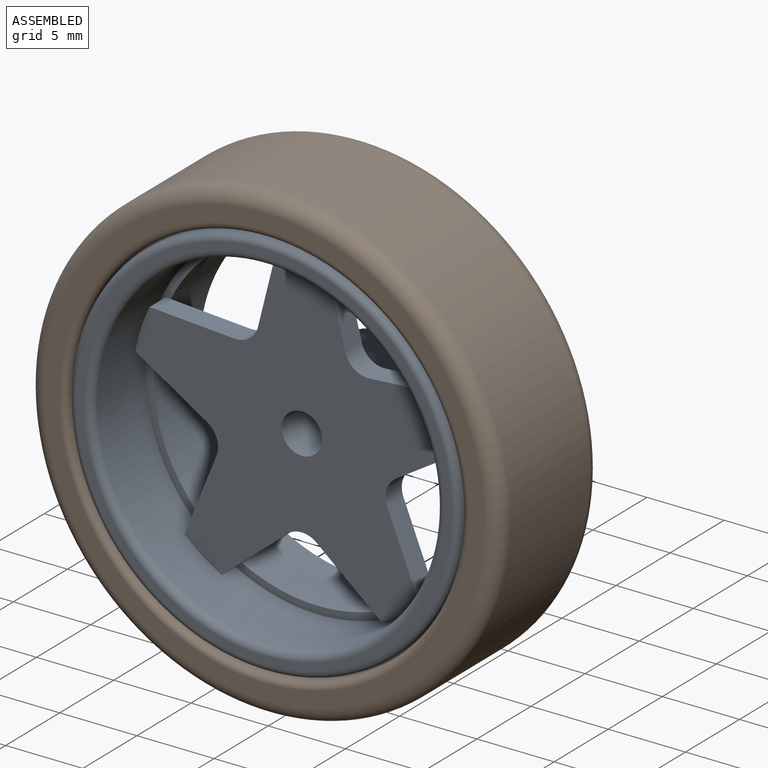
[diagram: assembled view]
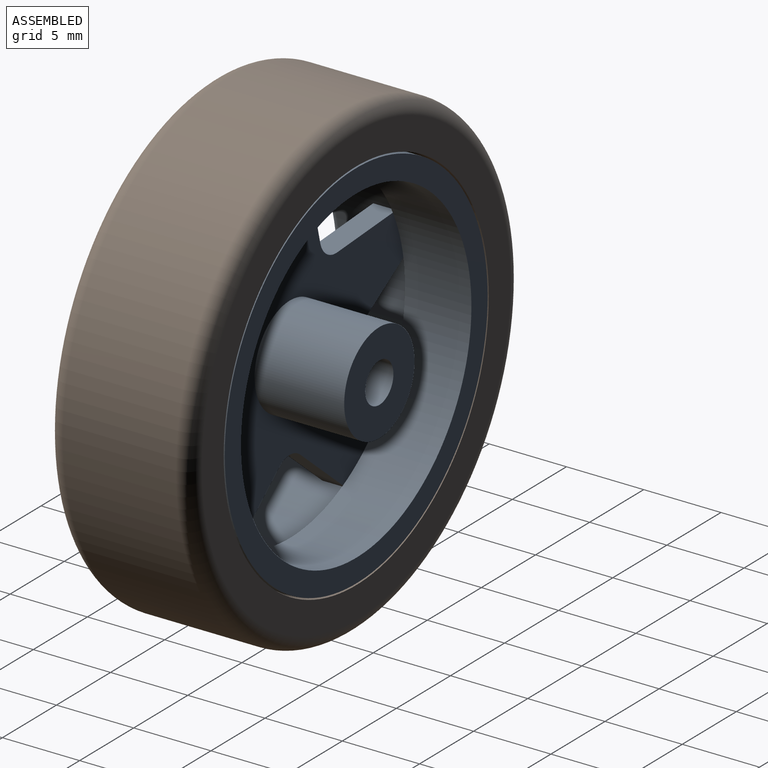
[diagram: assembled view, second angle]
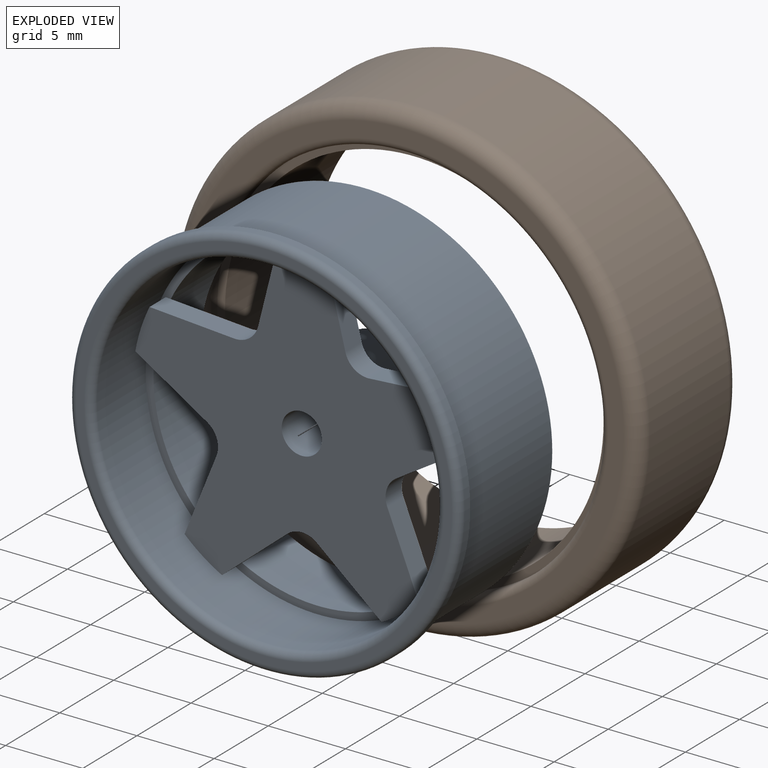
[diagram: exploded view]
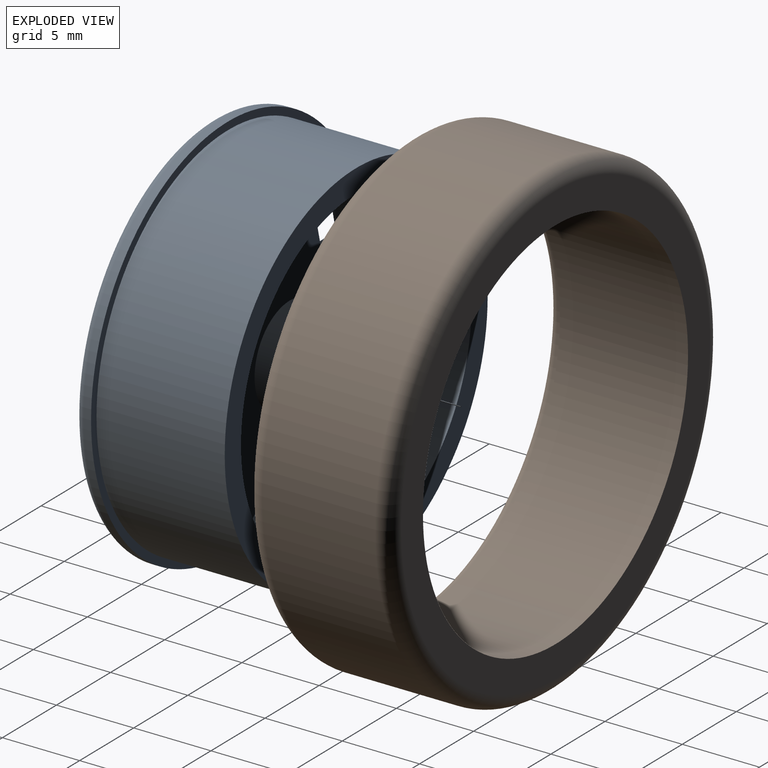
[diagram: exploded view, second angle]
FCSTD DOCUMENT  (FreeCAD 1.0R39285 (Git))
Label: Dished5Spoke
License: All rights reserved
LicenseURL: https://en.wikipedia.org/wiki/All_rights_reserved
objects: App::Link×2, App::FeaturePython×2, Assembly::JointGroup×1, Assembly::AssemblyObject×1
EXTERNAL_REF file=RimsAndTires/Dished5SpokeRim.FCStd obj=Part
EXTERNAL_REF file=RimsAndTires/Tire.FCStd obj=Body

FEATURE [App::Link] Dished5Spoke1
  LinkedObject = -> <external RimsAndTires/Dished5SpokeRim.FCStd>#Part
FEATURE [App::FeaturePython] GroundedJoint  # Assembly grounded joint (typed FeaturePython)
  ObjectToGround = -> Dished5Spoke1
FEATURE [App::Link] SingleTire
  LinkPlacement = pos=(-1.24e-14,-0.75,-5.09e-14) rot=(0,1,0;3.14159rad)
  LinkedObject = -> <external RimsAndTires/Tire.FCStd>#Body
  Placement = pos=(-1.24e-14,-0.75,-5.09e-14) rot=(0,1,0;3.14159rad)
FEATURE [App::FeaturePython] Joint  label="Fixed"  # Assembly joint (typed FeaturePython)
  Activated = true
  AngleMax = 0
  AngleMin = 0
  Detach1 = false
  Detach2 = false
  Distance = 0
  Distance2 = 0
  EnableAngleMax = false
  EnableAngleMin = false
  EnableLengthMax = false
  EnableLengthMin = false
  JointType = 0 (Fixed)
  LengthMax = 0
  LengthMin = 0
  Placement1 = pos=(0,-4.4,0) rot=(1,0,0;1.5708rad)
  Placement2 = pos=(0,-3.65,0) rot=(0,-0.707107,-0.707107;3.14159rad)
  Reference1 = -> Assembly [Dished5Spoke1.Body001.Fillet.Face10,Dished5Spoke1.Body001.Fillet.Face10]
  Reference2 = -> Assembly [SingleTire.Fillet001.Face7,SingleTire.Fillet001.Face7]
FEATURE [Assembly::JointGroup] Joints
  Group = -> [GroundedJoint,Joint]
FEATURE [Assembly::AssemblyObject] Assembly  label="Dished5Spoke"
  Group = -> [Joints,Dished5Spoke1,GroundedJoint,SingleTire,Joint]
  Origin = -> Origin
  Type = Assembly

RESOLVED EXTERNAL PARTS (link-assembly join: the EXTERNAL_REF files above that resolve inside this repo's crawl, each included once):
---- part RimsAndTires/Dished5SpokeRim.FCStd = doc fcstd_57b3f1410dbf ----
FCSTD DOCUMENT  (FreeCAD 1.0R39285 (Git))
Label: Dished5SpokeRim
License: All rights reserved
LicenseURL: https://en.wikipedia.org/wiki/All_rights_reserved
objects: Sketcher::SketchObject×3, PartDesign::Revolution×2, PartDesign::Body×2, App::Link×1, PartDesign::Fillet×1, PartDesign::Pocket×1, PartDesign::PolarPattern×1, App::Part×1
note: 22 computed .brp shape members not serialized (recipe doc carries the construction recipe); baked Part::Feature solids carry a one-line shape summary decoded from their .brp
EXTERNAL_REF file=../../../../Dimentions.FCStd obj=dd002

FEATURE [Sketcher::SketchObject] Sketch
  ArcFitTolerance = 1e-06
  AttachmentSupport = -> [XY_Plane]
  FullyConstrained = true
  MakeInternals = false
  MapMode = 5
  expr: Constraints[33] = <<Wheel>>.SingleThickness
  expr: Constraints[34] = <<Wheel>>.RimDiameter
  expr: Constraints[35] = <<Wheel>>.StemDiameter
  expr: Constraints[36] = <<Wheel>>.StemPoke
  expr: Constraints[37] = <<Wheel>>.AxelHoleDiameter
  expr: Constraints[38] = <<Wheel>>.RimBarrelThickness + <<Wheel>>.TireTolerance
  expr: Constraints[48] = <<Wheel>>.HubDip
  expr: Constraints[61] = <<Wheel>>.RimBarrelThickness
  sketch-geometry (22):
    g0: LineSegment [constr] StartX=-1.3 StartY=5.4 StartZ=0 EndX=-1.3 EndY=-5.4 EndZ=0
    g1: LineSegment [constr] StartX=-1.3 StartY=-5.4 StartZ=0 EndX=-12.65 EndY=-5.4 EndZ=0
    g2: LineSegment [constr] StartX=-12.65 StartY=-5.4 StartZ=0 EndX=-12.65 EndY=3.9 EndZ=0
    g3: LineSegment [constr] StartX=-12.65 StartY=3.9 StartZ=0 EndX=-3.25 EndY=3.9 EndZ=0
    g4: LineSegment [constr] StartX=-3.25 StartY=3.9 StartZ=0 EndX=-3.25 EndY=5.4 EndZ=0
    g5: LineSegment [constr] StartX=-3.25 StartY=5.4 StartZ=0 EndX=-1.3 EndY=5.4 EndZ=0
    g6: LineSegment [constr] StartX=1.3 StartY=5.4 StartZ=0 EndX=1.3 EndY=-5.4 EndZ=0
    g7: LineSegment [constr] StartX=1.3 StartY=-5.4 StartZ=0 EndX=12.65 EndY=-5.4 EndZ=0
    g8: LineSegment [constr] StartX=12.65 StartY=-5.4 StartZ=0 EndX=12.65 EndY=3.9 EndZ=0
    g9: LineSegment [constr] StartX=12.65 StartY=3.9 StartZ=0 EndX=10.95 EndY=3.9 EndZ=0
    g10: LineSegment [constr] StartX=10.95 StartY=3.9 StartZ=0 EndX=10.95 EndY=-1.4 EndZ=0
    g11: LineSegment [constr] StartX=10.95 StartY=-1.4 StartZ=0 EndX=3.25 EndY=-1.4 EndZ=0
    g12: LineSegment [constr] StartX=3.25 StartY=-1.4 StartZ=0 EndX=3.25 EndY=5.4 EndZ=0
    g13: LineSegment StartX=3.25 StartY=5.4 StartZ=0 EndX=1.3 EndY=5.4 EndZ=0
    g14: LineSegment [constr] StartX=10.95 StartY=-1.4 StartZ=0 EndX=10.95 EndY=-5.4 EndZ=0
    g15: LineSegment StartX=1.3 StartY=5.4 StartZ=0 EndX=1.3 EndY=-1.9 EndZ=0
    g16: LineSegment [constr] StartX=1.3 StartY=-1.9 StartZ=0 EndX=3.25 EndY=-1.9 EndZ=0
    g17: LineSegment [constr] StartX=3.25 StartY=5.4 StartZ=0 EndX=3.25 EndY=-1.9 EndZ=0
    g18: LineSegment StartX=3.25 StartY=5.4 StartZ=0 EndX=3.25 EndY=-0.4 EndZ=0
    g19: LineSegment StartX=3.25 StartY=-0.4 StartZ=0 EndX=10.95 EndY=-0.4 EndZ=0
    g20: LineSegment StartX=10.95 StartY=-0.4 StartZ=0 EndX=10.95 EndY=-1.9 EndZ=0
    g21: LineSegment StartX=10.95 StartY=-1.9 StartZ=0 EndX=1.3 EndY=-1.9 EndZ=0
  constraints (62):
    c: Vertical(g0)
    c: Coincident(g0,g1)
    c: Horizontal(g1)
    c: Coincident(g1,g2)
    c: Vertical(g2)
    c: Coincident(g2,g3)
    c: Horizontal(g3)
    c: Coincident(g3,g4)
    c: Vertical(g4)
    c: Coincident(g4,g5)
    c: Coincident(g5,g0)
    c: Horizontal(g5)
    c: Coincident(g6,g7)
    c: Horizontal(g7)
    c: Coincident(g7,g8)
    c: Vertical(g8)
    c: Coincident(g8,g9)
    c: Horizontal(g9)
    c: Coincident(g9,g10)
    c: Vertical(g10)
    c: Coincident(g10,g11)
    c: Horizontal(g11)
    c: Coincident(g11,g12)
    c: Vertical(g12)
    c: Coincident(g12,g13)
    c: Coincident(g13,g6)
    c: Symmetric(g0,g6,g-2)
    c: Horizontal(g13)
    c: Equal(g13,g5)
    c: Symmetric(g6,g6,g-1)
    c: Equal(g0,g6)
    c: Equal(g2,g8)
    c: Equal(g1,g7)
    c: DistanceY(g6,g6) = 10.8
    c: DistanceX(g1,g7) = 25.3
    c: Distance(g4,g12) = 6.5
    c: DistanceY(g9,g12) = 1.5
    c: Distance(g0,g6) = 2.6
    c: DistanceX(g10,g7) = 1.7
    c: Coincident(g14,g10)
    c: Vertical(g14)
    c: DistanceY(g14,g14) = 4
    c: Coincident(g6,g15)
    c: PointOnObject(g15,g6)
    c: Coincident(g15,g16)
    c: Horizontal(g16)
    c: Coincident(g12,g17)
    c: PointOnObject(g17,g12)
    c: DistanceY(g6,g15) = 3.5
    c: Coincident(g16,g17)
    c: PointOnObject(g14,g7)
    c: Coincident(g12,g18)
    c: PointOnObject(g18,g12)
    c: Coincident(g18,g19)
    c: PointOnObject(g19,g10)
    c: Horizontal(g19)
    c: Coincident(g19,g20)
    c: PointOnObject(g20,g14)
    c: Coincident(g20,g21)
    c: Coincident(g21,g15)
    c: Horizontal(g21)
    c: DistanceY(g20,g20) = 1.5
FEATURE [PartDesign::Revolution] Revolution
  Angle = 360
  Angle2 = 60
  Axis = (0,1,0)
  Base = (0,0,0)
  Profile = -> Sketch
  ReferenceAxis = -> Sketch [V_Axis]
  Refine = true
  Reversed = true
  Suppressed = false
  Type = 0
FEATURE [App::Link] Link  label="Wheel"
  LinkedObject = -> <external ../../../../Dimentions.FCStd>#dd002
  RimBarrelThickness = 1.5
FEATURE [Sketcher::SketchObject] Sketch001
  ArcFitTolerance = 1e-06
  AttachmentSupport = -> [XY_Plane002]
  FullyConstrained = false
  MakeInternals = false
  MapMode = 5
  expr: Constraints[28] = <<Wheel>>.RimDiameter
  expr: Constraints[30] = <<Wheel>>.RimBarrelThickness
  expr: Constraints[32] = <<Wheel>>.RimLipThickness
  expr: Constraints[33] = <<Wheel>>.TireBeadWidth
  expr: Constraints[35] = <<Wheel>>.SingleThickness - <<Wheel>>.StemPoke
  expr: Constraints[36] = <<Wheel>>.HubDip + <<Wheel>>.RimBarrelThickness
  expr: Constraints[45] = <<Wheel>>.StemPoke
  sketch-geometry (17):
    g0: LineSegment [constr] StartX=-12.65 StartY=-5.4 StartZ=0 EndX=-9.9918 EndY=-5.4 EndZ=0
    g1: LineSegment [constr] StartX=-9.9918 StartY=-5.4 StartZ=0 EndX=-9.9918 EndY=3.9 EndZ=0
    g2: LineSegment [constr] StartX=-9.9918 StartY=3.9 StartZ=0 EndX=-12.65 EndY=3.9 EndZ=0
    g3: LineSegment [constr] StartX=-12.65 StartY=3.9 StartZ=0 EndX=-12.65 EndY=-5.4 EndZ=0
    g4: LineSegment StartX=10.65 StartY=3.9 StartZ=0 EndX=10.65 EndY=-0.4 EndZ=0
    g5: LineSegment StartX=10.65 StartY=-0.4 StartZ=0 EndX=11.15 EndY=-0.4 EndZ=0
    g6: LineSegment StartX=11.15 StartY=-0.4 StartZ=0 EndX=11.15 EndY=-5.4 EndZ=0
    g7: LineSegment StartX=11.15 StartY=-5.4 StartZ=0 EndX=12.65 EndY=-5.4 EndZ=0
    g8: LineSegment StartX=12.65 StartY=-5.4 StartZ=0 EndX=12.65 EndY=-4.4 EndZ=0
    g9: LineSegment StartX=12.65 StartY=-4.4 StartZ=0 EndX=12.15 EndY=-4.4 EndZ=0
    g10: LineSegment StartX=12.15 StartY=-4.4 StartZ=0 EndX=12.15 EndY=3.9 EndZ=0
    g11: LineSegment StartX=12.15 StartY=3.9 StartZ=0 EndX=10.65 EndY=3.9 EndZ=0
    g12: LineSegment [constr] StartX=10.65 StartY=-0.4 StartZ=0 EndX=10.65 EndY=-5.4 EndZ=0
    g13: LineSegment [constr] StartX=10.65 StartY=-5.4 StartZ=0 EndX=11.15 EndY=-5.4 EndZ=0
    g14: LineSegment [constr] StartX=10.65 StartY=3.9 StartZ=0 EndX=10.65 EndY=5.4 EndZ=0
    g15: LineSegment [constr] StartX=10.65 StartY=5.4 StartZ=0 EndX=12.15 EndY=5.4 EndZ=0
    g16: LineSegment [constr] StartX=12.15 StartY=5.4 StartZ=0 EndX=12.15 EndY=3.9 EndZ=0
  constraints (46):
    c: Coincident(g0,g1)
    c: Coincident(g1,g2)
    c: Coincident(g2,g3)
    c: Coincident(g3,g0)
    c: Horizontal(g0)
    c: Horizontal(g2)
    c: Vertical(g1)
    c: Vertical(g3)
    c: Vertical(g4)
    c: Coincident(g4,g5)
    c: Coincident(g5,g6)
    c: Vertical(g6)
    c: Coincident(g6,g7)
    c: Horizontal(g7)
    c: Coincident(g7,g8)
    c: Vertical(g8)
    c: Coincident(g8,g9)
    c: Horizontal(g9)
    c: Coincident(g9,g10)
    c: Vertical(g10)
    c: Coincident(g10,g11)
    c: Coincident(g11,g4)
    c: Horizontal(g5)
    c: Horizontal(g11)
    c: Coincident(g4,g12)
    c: Coincident(g12,g13)
    c: Coincident(g13,g6)
    c: Horizontal(g13)
    c: DistanceX(g0,g7) = 25.3
    c: Symmetric(g0,g7,g-2)
    c: DistanceX(g7,g7) = 1.5
    c: Equal(g7,g11)
    c: Distance(g8,g8) = 1
    c: DistanceX(g9,g9) = 0.5
    c: Horizontal(g1,g4)
    c: DistanceY(g12,g4) = 9.3
    c: DistanceY(g6,g6) = 5
    c: Coincident(g4,g14)
    c: Vertical(g14)
    c: Coincident(g14,g15)
    c: Horizontal(g15)
    c: Coincident(g15,g16)
    c: Coincident(g16,g10)
    c: Symmetric(g14,g12,g-1)
    c: Vertical(g16)
    c: DistanceY(g14,g14) = 1.5
FEATURE [PartDesign::Revolution] Revolution001
  Angle = 360
  Angle2 = 60
  Axis = (0,1,0)
  Base = (0,0,0)
  Profile = -> Sketch001
  ReferenceAxis = -> Sketch001 [V_Axis]
  Refine = true
  Reversed = true
  Suppressed = false
  Type = 0
FEATURE [PartDesign::Fillet] Fillet
  Base = -> Revolution001 [Edge7,Edge5]
  BaseFeature = -> Revolution001
  Radius = 0.5
  Refine = true
  SupportTransform = false
  Suppressed = false
  UseAllEdges = false
FEATURE [PartDesign::Body] Body001  label="Barrel"
  AllowCompound = false
  Group = -> [Sketch001,Revolution001,Fillet]
  Origin = -> Origin002
  Tip = -> Fillet
FEATURE [Sketcher::SketchObject] Sketch002
  ArcFitTolerance = 1e-06
  AttachmentSupport = -> [Revolution]
  FullyConstrained = true
  MakeInternals = false
  MapMode = 5
  Placement = pos=(0,-1.9,0) rot=(1,0,0;1.5708rad)
  expr: Constraints[17] = 1.5
  expr: Constraints[4] = <<Wheel>>.RimDiameter - (<<Wheel>>.RimBarrelThickness + <<Wheel>>.TireTolerance) * 2
  sketch-geometry (10):
    g0: LineSegment [constr] StartX=0 StartY=0 StartZ=0 EndX=10.4141 EndY=3.38374 EndZ=0
    g1: LineSegment [constr] StartX=0 StartY=0 StartZ=0 EndX=-10.4141 EndY=-3.38374 EndZ=0
    g2: Circle [constr] CenterX=0 CenterY=0 CenterZ=0 NormalX=0 NormalY=0 NormalZ=1 AngleXU=0 Radius=10.95
    g3: LineSegment StartX=1.49648 StartY=10.8473 StartZ=0 EndX=2.82318 EndY=5.52614 EndZ=0
    g4: LineSegment StartX=4.38326 StartY=4.39268 StartZ=0 EndX=9.85392 EndY=4.77522 EndZ=0
    g5: ArcOfCircle CenterX=0 CenterY=0 CenterZ=0 NormalX=0 NormalY=0 NormalZ=1 AngleXU=0 Radius=10.95 StartAngle=0.451253 EndAngle=1.4337
    g6: LineSegment [constr] StartX=0 StartY=10.95 StartZ=0 EndX=1.49648 EndY=10.8473 EndZ=0
    g7: LineSegment [constr] StartX=9.85392 StartY=4.77522 StartZ=0 EndX=10.4141 EndY=3.38374 EndZ=0
    g8: ArcOfCircle CenterX=4.27863 CenterY=5.88902 CenterZ=0 NormalX=0 NormalY=0 NormalZ=1 AngleXU=0 Radius=1.5 StartAngle=3.38594 EndAngle=4.7822
    g9: GeomPoint [constr] X=3.12768 Y=4.30488 Z=0
  constraints (25):
    c: Coincident(g0,g-1)
    c: Angle(g0,g-2) = 1.25664
    c: Tangent(g1,g0) = 1.5708
    c: Equal(g1,g0)
    c: Distance(g0,g1) = 21.9
    c: Coincident(g2,g0)
    c: PointOnObject(g0,g2)
    c: PointOnObject(g3,g2)
    c: Coincident(g5,g0)
    c: Coincident(g5,g3)
    c: Coincident(g5,g4)
    c: PointOnObject(g6,g-2)
    c: Coincident(g6,g3)
    c: PointOnObject(g6,g2)
    c: Coincident(g7,g4)
    c: Coincident(g0,g7)
    c: Equal(g6,g7)
    c: Distance(g7,g7) = 1.5
    c: PointOnObject(g9,g3)
    c: PointOnObject(g9,g4)
    c: Tangent(g3,g8) = -1.5708
    c: Tangent(g4,g8) = -1.5708
    c: Angle(g4,g3) = 1.74533
    c: Equal(g4,g3)
    c: Radius(g8) = 1.5
FEATURE [PartDesign::Pocket] Pocket
  BaseFeature = -> Revolution
  Direction = (0,1,-2e-16)
  Length = 5
  Length2 = 5
  Midplane = true
  Profile = -> Sketch002
  ReferenceAxis = -> Sketch002 [N_Axis]
  Refine = true
  Suppressed = false
  Type = 1
FEATURE [PartDesign::PolarPattern] PolarPattern
  Angle = 360
  Axis = -> Sketch002 [N_Axis]
  BaseFeature = -> Pocket
  Mode = 0
  Occurrences = 5
  Offset = 120
  Originals = -> [Pocket]
  Refine = true
  Suppressed = false
  TransformMode = 0
FEATURE [PartDesign::Body] Body  label="Face"
  AllowCompound = false
  Group = -> [Sketch,Revolution,Sketch002,Pocket,PolarPattern]
  Origin = -> Origin
  Tip = -> PolarPattern
FEATURE [App::Part] Part  label="Dished5Spoke1"
  Group = -> [Body,Body001]
  Origin = -> Origin001
---- part RimsAndTires/Tire.FCStd = doc fcstd_0f301d4dc628 ----
FCSTD DOCUMENT  (FreeCAD 1.0R39285 (Git))
Label: Tire
License: All rights reserved
LicenseURL: https://en.wikipedia.org/wiki/All_rights_reserved
objects: PartDesign::Fillet×2, Sketcher::SketchObject×1, PartDesign::Revolution×1, App::Link×1, PartDesign::Body×1
note: 12 computed .brp shape members not serialized (recipe doc carries the construction recipe); baked Part::Feature solids carry a one-line shape summary decoded from their .brp
EXTERNAL_REF file=Dished5SpokeRim.FCStd obj=Link

FEATURE [Sketcher::SketchObject] Sketch
  ArcFitTolerance = 1e-06
  AttachmentSupport = -> [XY_Plane]
  FullyConstrained = false
  MakeInternals = false
  MapMode = 5
  expr: Constraints[15] = <<Wheel>>.Diameter
  expr: Constraints[31] = <<Wheel>>.TireThicnkess
  expr: Constraints[33] = <<Wheel>>.SingleThickness - <<Wheel>>.StemPoke
  expr: Constraints[35] = <<Wheel>>.TireBeadWidth
  expr: Constraints[36] = <<Wheel>>.RimLipThickness
  sketch-geometry (16):
    g0: LineSegment [constr] StartX=-1.3 StartY=6.15 StartZ=0 EndX=-1.3 EndY=-4.65 EndZ=0
    g1: LineSegment [constr] StartX=-1.3 StartY=-4.65 StartZ=0 EndX=-15.25 EndY=-4.65 EndZ=0
    g2: LineSegment [constr] StartX=-15.25 StartY=-4.65 StartZ=0 EndX=-15.25 EndY=4.65 EndZ=0
    g3: LineSegment [constr] StartX=-15.25 StartY=4.65 StartZ=0 EndX=-3.25 EndY=4.65 EndZ=0
    g4: LineSegment [constr] StartX=-3.25 StartY=4.65 StartZ=0 EndX=-3.25 EndY=6.15 EndZ=0
    g5: LineSegment [constr] StartX=-3.25 StartY=6.15 StartZ=0 EndX=-1.3 EndY=6.15 EndZ=0
    g6: LineSegment StartX=15.25 StartY=-4.65 StartZ=0 EndX=15.25 EndY=4.65 EndZ=0
    g7: LineSegment [constr] StartX=15.25 StartY=4.65 StartZ=0 EndX=12.75 EndY=4.65 EndZ=0
    g8: LineSegment [constr] StartX=12.75 StartY=4.65 StartZ=0 EndX=12.75 EndY=3.65 EndZ=0
    g9: LineSegment [constr] StartX=12.75 StartY=3.65 StartZ=0 EndX=12.25 EndY=3.65 EndZ=0
    g10: LineSegment [constr] StartX=12.25 StartY=3.65 StartZ=0 EndX=12.25 EndY=-3.65 EndZ=0
    g11: LineSegment StartX=12.25 StartY=-3.65 StartZ=0 EndX=12.75 EndY=-3.65 EndZ=0
    g12: LineSegment StartX=12.75 StartY=-3.65 StartZ=0 EndX=12.75 EndY=-4.65 EndZ=0
    g13: LineSegment StartX=12.75 StartY=-4.65 StartZ=0 EndX=15.25 EndY=-4.65 EndZ=0
    g14: LineSegment StartX=12.25 StartY=-3.65 StartZ=0 EndX=12.25 EndY=4.65 EndZ=0
    g15: LineSegment StartX=12.25 StartY=4.65 StartZ=0 EndX=15.25 EndY=4.65 EndZ=0
  constraints (44):
    c: Vertical(g0)
    c: Coincident(g0,g1)
    c: Horizontal(g1)
    c: Coincident(g1,g2)
    c: Vertical(g2)
    c: Coincident(g2,g3)
    c: Horizontal(g3)
    c: Coincident(g3,g4)
    c: Vertical(g4)
    c: Coincident(g4,g5)
    c: Coincident(g5,g0)
    c: Horizontal(g5)
    c: Coincident(g6,g7)
    c: Horizontal(g7)
    c: Equal(g2,g6)
    c: DistanceX(g1,g6) = 30.5
    c: Symmetric(g6,g6,g-1)
    c: Coincident(g7,g8)
    c: Coincident(g8,g9)
    c: Horizontal(g9)
    c: Coincident(g9,g10)
    c: Vertical(g10)
    c: Coincident(g10,g11)
    c: Horizontal(g11)
    c: Coincident(g11,g12)
    c: Vertical(g12)
    c: Coincident(g12,g13)
    c: Coincident(g13,g6)
    c: Horizontal(g13)
    c: Vertical(g8)
    c: Equal(g8,g12)
    c: Distance(g13,g13) = 2.5
    c: Symmetric(g1,g6,g-2)
    c: DistanceY(g6,g6) = 9.3
    c: Equal(g13,g7)
    c: DistanceX(g11,g11) = 0.5
    c: DistanceY(g12,g12) = 1
    c: Coincident(g10,g14)
    c: Vertical(g14)
    c: Coincident(g14,g15)
    c: Coincident(g15,g6)
    c: Horizontal(g15)
    c: DistanceX(g-1,g12) = 12.75
    c: DistanceX(g-1,g10) = 12.25
FEATURE [PartDesign::Revolution] Revolution
  Angle = 360
  Angle2 = 60
  Axis = (0,1,0)
  Base = (0,0,0)
  Profile = -> Sketch
  ReferenceAxis = -> Sketch [V_Axis]
  Refine = true
  Reversed = true
  Suppressed = false
  Type = 0
FEATURE [PartDesign::Fillet] Fillet
  Base = -> Revolution [Edge3]
  BaseFeature = -> Revolution
  Radius = 0.5
  Refine = true
  SupportTransform = false
  Suppressed = false
  UseAllEdges = false
FEATURE [App::Link] Link001  label="Wheel"
  LinkedObject = -> <external Dished5SpokeRim.FCStd>#Link
FEATURE [PartDesign::Fillet] Fillet001
  Base = -> Fillet [Edge10,Edge7]
  BaseFeature = -> Fillet
  Radius = 1
  Refine = true
  SupportTransform = false
  Suppressed = false
  UseAllEdges = false
FEATURE [PartDesign::Body] Body  label="SingleTire"
  AllowCompound = false
  Group = -> [Sketch,Revolution,Fillet,Fillet001]
  Origin = -> Origin
  Tip = -> Fillet001
